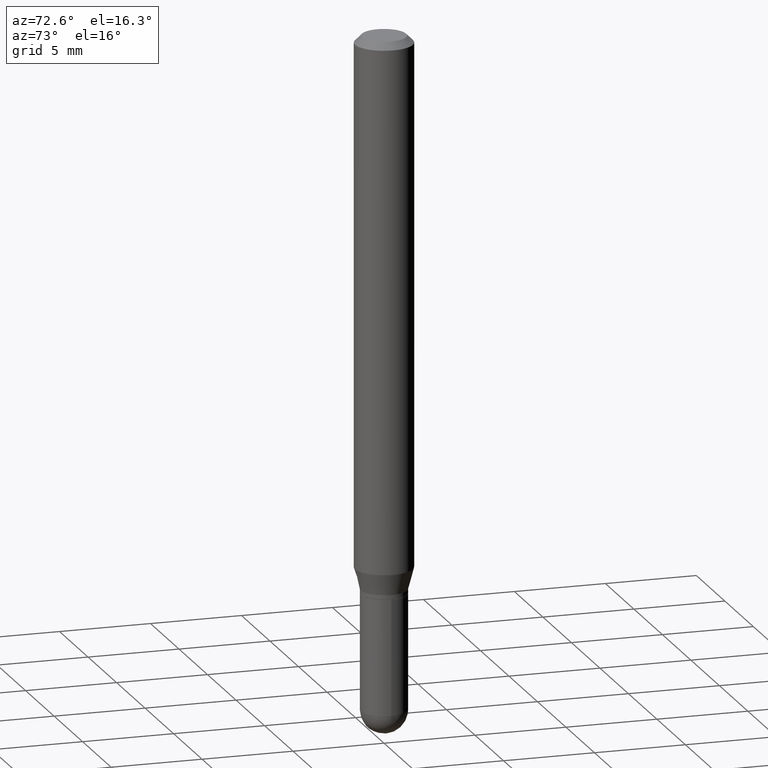
[diagram: clean part render]
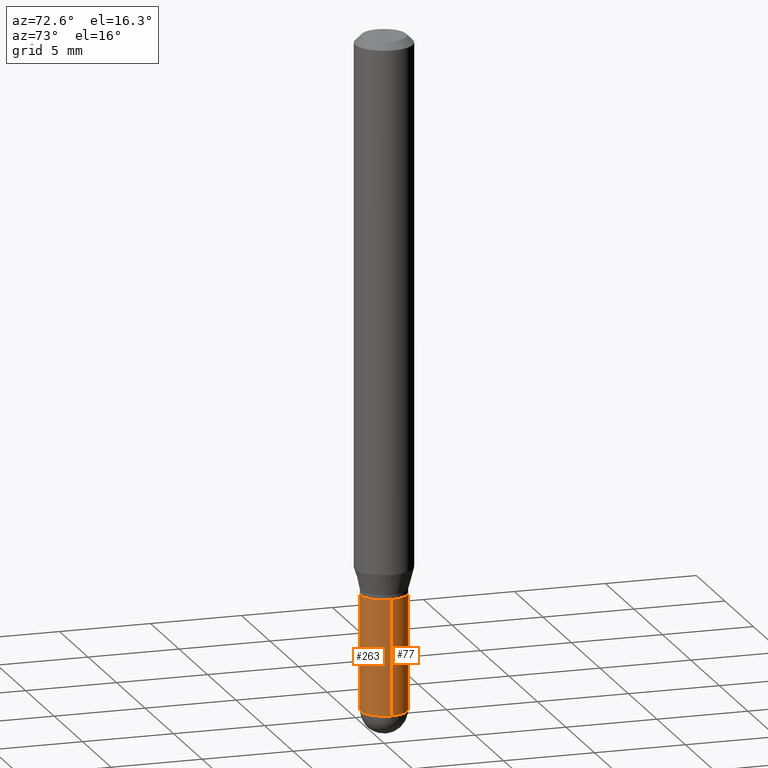
[diagram: same view with one multi-face feature highlighted, each face labeled with its STEP entity id]
A machine part, auxiliary view. The highlighted faces form ONE feature: a constant-radius fillet chain: 2 tangent blend faces with common blend radius 1.27 mm. The faces share edges in the B-rep.
Their STEP definitions:
[1] entity #263 (Cylinder):
#3 = VECTOR ( 'NONE', #41, 39.37007874015748143 ) ;
#5 = EDGE_CURVE ( 'NONE', #416, #220, #344, .T. ) ;
#16 = EDGE_CURVE ( 'NONE', #220, #398, #490, .T. ) ;
#18 = VECTOR ( 'NONE', #141, 39.37007874015748143 ) ;
#31 = ORIENTED_EDGE ( 'NONE', *, *, #16, .F. ) ;
#35 = AXIS2_PLACEMENT_3D ( 'NONE', #480, #84, #155 ) ;
#38 = DIRECTION ( 'NONE',  ( -2.445468806185136597E-29, 3.491481338843145583E-15, 1.000000000000000000 ) ) ;
#41 = DIRECTION ( 'NONE',  ( -2.445468806185136877E-29, 3.491481338843145188E-15, 1.000000000000000000 ) ) ;
#75 = DIRECTION ( 'NONE',  ( -2.445468806185136597E-29, 3.491481338843145583E-15, 1.000000000000000000 ) ) ;
#80 = ORIENTED_EDGE ( 'NONE', *, *, #5, .F. ) ;
#84 = DIRECTION ( 'NONE',  ( -2.445468806185136597E-29, 3.491481338843145583E-15, 1.000000000000000000 ) ) ;
#90 = CIRCLE ( 'NONE', #35, 0.04999999999999999584 ) ;
#102 = EDGE_CURVE ( 'NONE', #416, #508, #284, .T. ) ;
#105 = LINE ( 'NONE', #261, #18 ) ;
#112 = FACE_OUTER_BOUND ( 'NONE', #275, .T. ) ;
#141 = DIRECTION ( 'NONE',  ( -2.445468806185136877E-29, 3.491481338843145188E-15, 1.000000000000000000 ) ) ;
#143 = ORIENTED_EDGE ( 'NONE', *, *, #219, .T. ) ;
#155 = DIRECTION ( 'NONE',  ( 1.000000000000000000, -6.982962677686275388E-15, 0.000000000000000000 ) ) ;
#164 = DIRECTION ( 'NONE',  ( 1.000000000000000000, -6.982962677686275388E-15, 0.000000000000000000 ) ) ;
#180 = ORIENTED_EDGE ( 'NONE', *, *, #314, .T. ) ;
#181 = ORIENTED_EDGE ( 'NONE', *, *, #102, .T. ) ;
#189 = AXIS2_PLACEMENT_3D ( 'NONE', #434, #485, #164 ) ;
#219 = EDGE_CURVE ( 'NONE', #508, #345, #90, .T. ) ;
#220 = VERTEX_POINT ( 'NONE', #401 ) ;
#226 = CARTESIAN_POINT ( 'NONE',  ( 0.04999999999999999584, -4.975360907851482386E-15, -1.450000000000000178 ) ) ;
#227 = DIRECTION ( 'NONE',  ( 1.000000000000000000, -6.982962677686274599E-15, 0.000000000000000000 ) ) ;
#257 = AXIS2_PLACEMENT_3D ( 'NONE', #272, #75, #227 ) ;
#261 = CARTESIAN_POINT ( 'NONE',  ( 0.04999999999999999584, -3.491481338843132862E-16, 2.438088387897967896E-30 ) ) ;
#263 = ADVANCED_FACE ( 'NONE', ( #112 ), #277, .T. ) ;
#272 = CARTESIAN_POINT ( 'NONE',  ( 2.934562567422164701E-29, -4.189777606611775804E-15, -1.200000000000000178 ) ) ;
#275 = EDGE_LOOP ( 'NONE', ( #80, #181, #143, #180, #31 ) ) ;
#277 = CYLINDRICAL_SURFACE ( 'NONE', #325, 0.04999999999999999584 ) ;
#284 = CIRCLE ( 'NONE', #189, 0.04999999999999999584 ) ;
#314 = EDGE_CURVE ( 'NONE', #345, #398, #105, .T. ) ;
#325 = AXIS2_PLACEMENT_3D ( 'NONE', #455, #38, #420 ) ;
#344 = LINE ( 'NONE', #512, #3 ) ;
#345 = VERTEX_POINT ( 'NONE', #226 ) ;
#398 = VERTEX_POINT ( 'NONE', #424 ) ;
#401 = CARTESIAN_POINT ( 'NONE',  ( -0.05000000000000000278, -4.270941406087117853E-15, -1.200000000000000178 ) ) ;
#416 = VERTEX_POINT ( 'NONE', #433 ) ;
#420 = DIRECTION ( 'NONE',  ( 1.000000000000000000, -6.982962677686265922E-15, 4.876176775795936353E-29 ) ) ;
#424 = CARTESIAN_POINT ( 'NONE',  ( 0.05000000000000000278, -4.538925740496089139E-15, -1.200000000000000178 ) ) ;
#433 = CARTESIAN_POINT ( 'NONE',  ( -0.04999999999999999584, -4.270941406087117853E-15, -1.450000000000000178 ) ) ;
#434 = CARTESIAN_POINT ( 'NONE',  ( 3.545929768968448850E-29, -5.062647941322561509E-15, -1.450000000000000178 ) ) ;
#455 = CARTESIAN_POINT ( 'NONE',  ( 0.000000000000000000, 0.000000000000000000, 0.000000000000000000 ) ) ;
#480 = CARTESIAN_POINT ( 'NONE',  ( 3.545929768968448850E-29, -5.062647941322561509E-15, -1.450000000000000178 ) ) ;
#485 = DIRECTION ( 'NONE',  ( -2.445468806185136597E-29, 3.491481338843145583E-15, 1.000000000000000000 ) ) ;
#490 = CIRCLE ( 'NONE', #257, 0.05000000000000000278 ) ;
#502 = CARTESIAN_POINT ( 'NONE',  ( -3.491481338842782805E-16, -0.05000000000000513756, -1.449999999999999734 ) ) ;
#508 = VERTEX_POINT ( 'NONE', #502 ) ;
#512 = CARTESIAN_POINT ( 'NONE',  ( -0.04999999999999999584, 3.552713678800500634E-16, -2.459467545127452961E-30 ) ) ;
[2] entity #77 (Cylinder):
#3 = VECTOR ( 'NONE', #41, 39.37007874015748143 ) ;
#5 = EDGE_CURVE ( 'NONE', #416, #220, #344, .T. ) ;
#6 = FACE_OUTER_BOUND ( 'NONE', #309, .T. ) ;
#10 = AXIS2_PLACEMENT_3D ( 'NONE', #97, #431, #78 ) ;
#18 = VECTOR ( 'NONE', #141, 39.37007874015748143 ) ;
#27 = CIRCLE ( 'NONE', #10, 0.04999999999999999584 ) ;
#41 = DIRECTION ( 'NONE',  ( -2.445468806185136877E-29, 3.491481338843145188E-15, 1.000000000000000000 ) ) ;
#45 = ORIENTED_EDGE ( 'NONE', *, *, #336, .T. ) ;
#53 = CIRCLE ( 'NONE', #203, 0.04999999999999999584 ) ;
#62 = VERTEX_POINT ( 'NONE', #236 ) ;
#77 = ADVANCED_FACE ( 'NONE', ( #6 ), #195, .T. ) ;
#78 = DIRECTION ( 'NONE',  ( 1.000000000000000000, -6.982962677686275388E-15, 0.000000000000000000 ) ) ;
#97 = CARTESIAN_POINT ( 'NONE',  ( 3.545929768968448850E-29, -5.062647941322561509E-15, -1.450000000000000178 ) ) ;
#105 = LINE ( 'NONE', #261, #18 ) ;
#141 = DIRECTION ( 'NONE',  ( -2.445468806185136877E-29, 3.491481338843145188E-15, 1.000000000000000000 ) ) ;
#153 = DIRECTION ( 'NONE',  ( -2.445468806185136597E-29, 3.491481338843145583E-15, 1.000000000000000000 ) ) ;
#183 = AXIS2_PLACEMENT_3D ( 'NONE', #310, #473, #276 ) ;
#190 = ORIENTED_EDGE ( 'NONE', *, *, #5, .T. ) ;
#195 = CYLINDRICAL_SURFACE ( 'NONE', #417, 0.04999999999999999584 ) ;
#198 = ORIENTED_EDGE ( 'NONE', *, *, #415, .F. ) ;
#201 = CARTESIAN_POINT ( 'NONE',  ( 0.000000000000000000, 0.000000000000000000, 0.000000000000000000 ) ) ;
#203 = AXIS2_PLACEMENT_3D ( 'NONE', #459, #347, #217 ) ;
#205 = EDGE_CURVE ( 'NONE', #62, #416, #27, .T. ) ;
#217 = DIRECTION ( 'NONE',  ( 1.000000000000000000, -6.982962677686275388E-15, 0.000000000000000000 ) ) ;
#220 = VERTEX_POINT ( 'NONE', #401 ) ;
#226 = CARTESIAN_POINT ( 'NONE',  ( 0.04999999999999999584, -4.975360907851482386E-15, -1.450000000000000178 ) ) ;
#236 = CARTESIAN_POINT ( 'NONE',  ( 3.552713678800859565E-16, 0.04999999999999501371, -1.450000000000000400 ) ) ;
#261 = CARTESIAN_POINT ( 'NONE',  ( 0.04999999999999999584, -3.491481338843132862E-16, 2.438088387897967896E-30 ) ) ;
#276 = DIRECTION ( 'NONE',  ( 1.000000000000000000, -6.982962677686274599E-15, 0.000000000000000000 ) ) ;
#309 = EDGE_LOOP ( 'NONE', ( #444, #190, #198, #362, #45 ) ) ;
#310 = CARTESIAN_POINT ( 'NONE',  ( 2.934562567422164701E-29, -4.189777606611775804E-15, -1.200000000000000178 ) ) ;
#314 = EDGE_CURVE ( 'NONE', #345, #398, #105, .T. ) ;
#336 = EDGE_CURVE ( 'NONE', #345, #62, #53, .T. ) ;
#344 = LINE ( 'NONE', #512, #3 ) ;
#345 = VERTEX_POINT ( 'NONE', #226 ) ;
#347 = DIRECTION ( 'NONE',  ( -2.445468806185136597E-29, 3.491481338843145583E-15, 1.000000000000000000 ) ) ;
#362 = ORIENTED_EDGE ( 'NONE', *, *, #314, .F. ) ;
#364 = DIRECTION ( 'NONE',  ( 1.000000000000000000, -6.982962677686265922E-15, 4.876176775795936353E-29 ) ) ;
#398 = VERTEX_POINT ( 'NONE', #424 ) ;
#401 = CARTESIAN_POINT ( 'NONE',  ( -0.05000000000000000278, -4.270941406087117853E-15, -1.200000000000000178 ) ) ;
#411 = CIRCLE ( 'NONE', #183, 0.05000000000000000278 ) ;
#415 = EDGE_CURVE ( 'NONE', #398, #220, #411, .T. ) ;
#416 = VERTEX_POINT ( 'NONE', #433 ) ;
#417 = AXIS2_PLACEMENT_3D ( 'NONE', #201, #153, #364 ) ;
#424 = CARTESIAN_POINT ( 'NONE',  ( 0.05000000000000000278, -4.538925740496089139E-15, -1.200000000000000178 ) ) ;
#431 = DIRECTION ( 'NONE',  ( -2.445468806185136597E-29, 3.491481338843145583E-15, 1.000000000000000000 ) ) ;
#433 = CARTESIAN_POINT ( 'NONE',  ( -0.04999999999999999584, -4.270941406087117853E-15, -1.450000000000000178 ) ) ;
#444 = ORIENTED_EDGE ( 'NONE', *, *, #205, .T. ) ;
#459 = CARTESIAN_POINT ( 'NONE',  ( 3.545929768968448850E-29, -5.062647941322561509E-15, -1.450000000000000178 ) ) ;
#473 = DIRECTION ( 'NONE',  ( -2.445468806185136597E-29, 3.491481338843145583E-15, 1.000000000000000000 ) ) ;
#512 = CARTESIAN_POINT ( 'NONE',  ( -0.04999999999999999584, 3.552713678800500634E-16, -2.459467545127452961E-30 ) ) ;